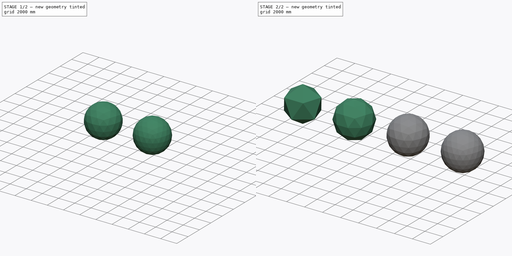
[diagram: build sequence overview — one tinted view per stage of 2, left to right]
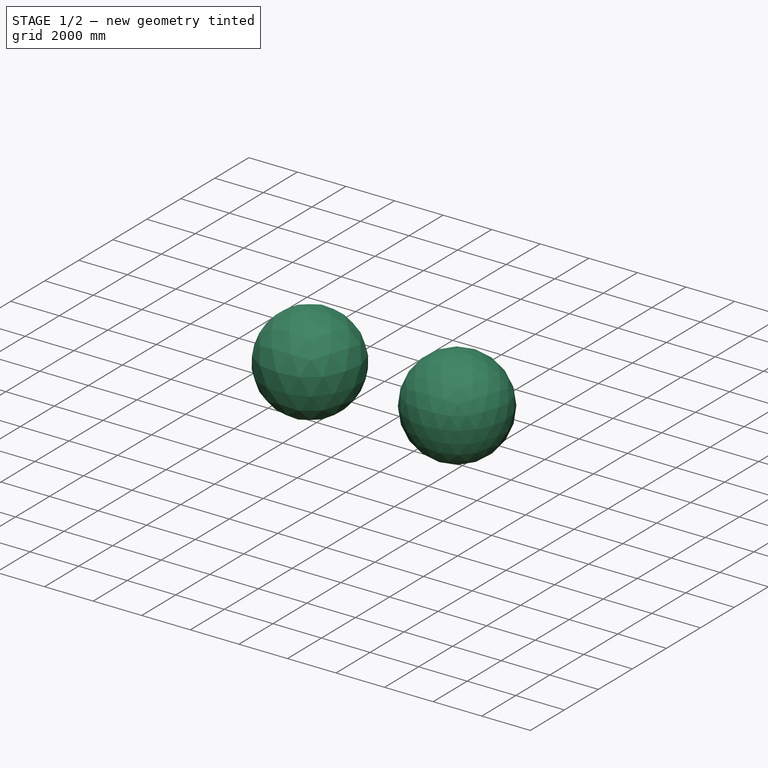
[diagram: stage 1 of 2 — iso view after this stage's code; geometry added in this stage tinted green]
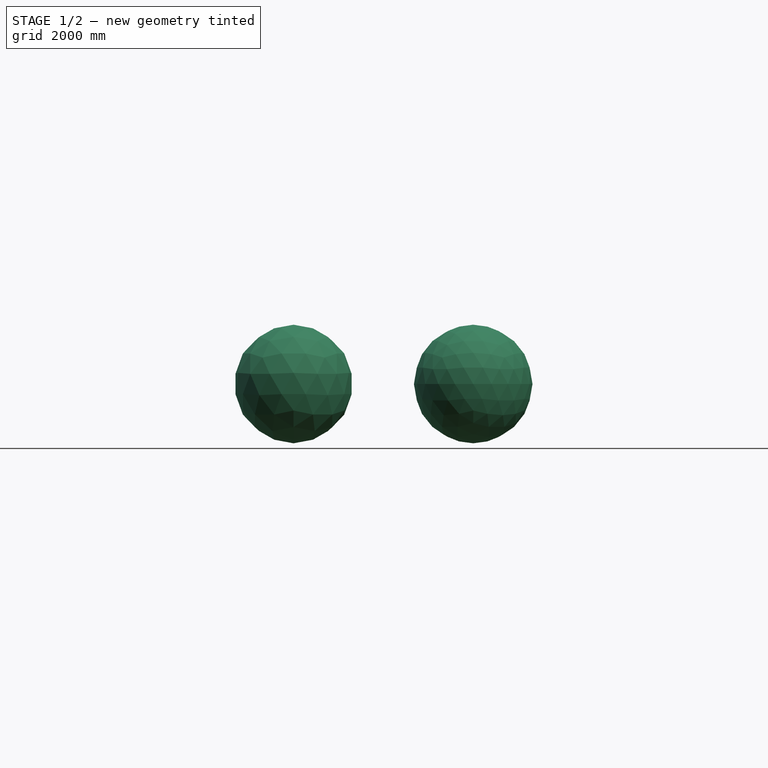
[diagram: stage 1 of 2 — front view after this stage's code; geometry added in this stage tinted green]
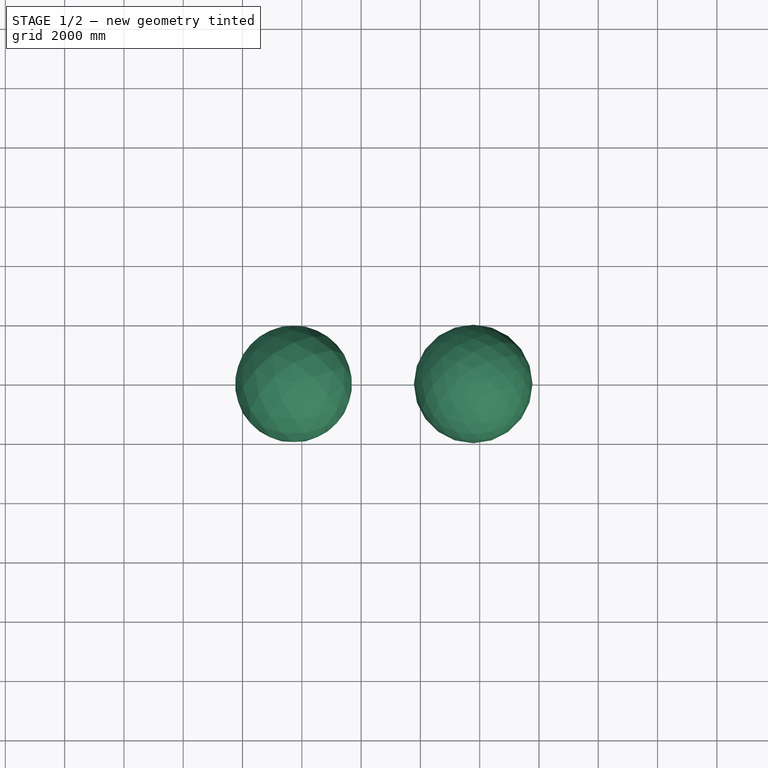
[diagram: stage 1 of 2 — top view after this stage's code; geometry added in this stage tinted green]
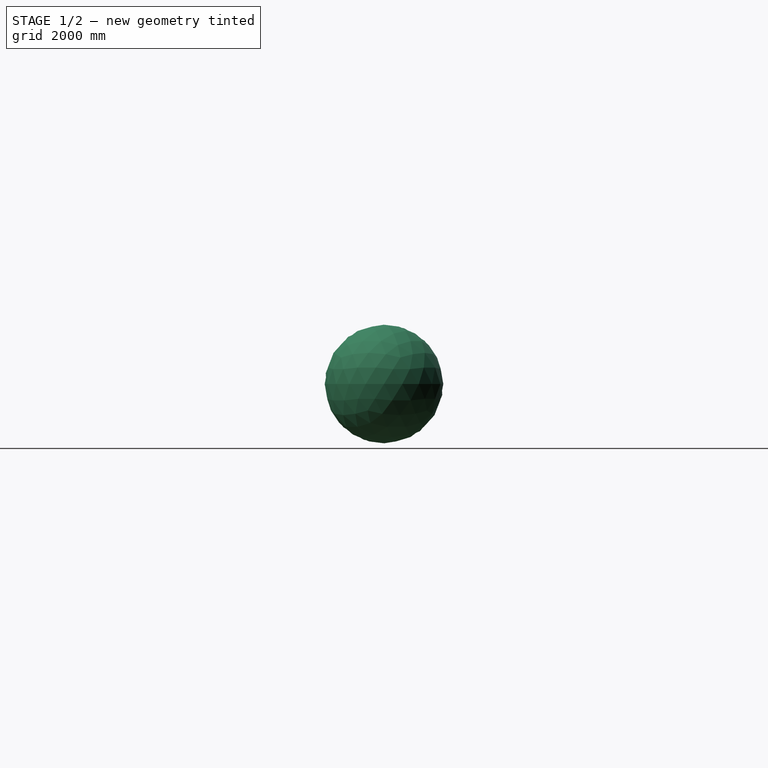
[diagram: stage 1 of 2 — right view after this stage's code; geometry added in this stage tinted green]
FCSTD DOCUMENT  (FreeCAD 0.19R24267 +99 (Git))
Label: isocahedron
License: All rights reserved
LicenseURL: http://en.wikipedia.org/wiki/All_rights_reserved
objects: Part::FeaturePython×4, PartDesign::ShapeBinder×1, Sketcher::SketchObject×1, PartDesign::CoordinateSystem×1, PartDesign::Body×1
note: 8 computed .brp shape members not serialized (recipe doc carries the construction recipe); baked Part::Feature solids carry a one-line shape summary decoded from their .brp

FEATURE [Part::FeaturePython] GeoDome002  label="GeoDome_180"  # WARN: FeaturePython — macro-defined, semantics opaque (R4)
  FrequencyParameter = 3
  Placement = pos=(11722,0,0) rot=(0,0,1;0rad)
  Radius = 2000
  ShapeType = 0
FEATURE [Part::FeaturePython] GeoDome003  label="GeoDome_320"  # WARN: FeaturePython — macro-defined, semantics opaque (R4)
  FrequencyParameter = 4
  Placement = pos=(17782,0,0) rot=(0,0,1;0rad)
  Radius = 2000
  ShapeType = 0
FEATURE [PartDesign::ShapeBinder] CopyGeoDome
  Placement = pos=(5737,0,0) rot=(0,0,1;0rad)
  TraceSupport = false
FEATURE [Sketcher::SketchObject] Sketch
  FullyConstrained = true
  MapMode = 5
  Placement = pos=(5737,-625.195,1780.47) rot=(1,0,0;0.337691rad)
  Support = -> [CopyGeoDome]
  sketch-geometry (27):
    g0: GeomPoint X=-411.745 Y=60.5871 Z=0
    g1: GeomPoint X=-208.366 Y=360.302 Z=0
    g2: LineSegment StartX=-208.366 StartY=360.302 StartZ=0 EndX=202.659 EndY=360.302 EndZ=0
    g3: LineSegment StartX=-411.745 StartY=60.5871 StartZ=0 EndX=410.305 EndY=60.5871 EndZ=0
    g4: GeomPoint X=-204.099 Y=-239.128 Z=0
    g5: GeomPoint X=206.926 Y=-239.128 Z=0
    g6: LineSegment StartX=-204.099 StartY=-239.128 StartZ=0 EndX=-411.745 EndY=60.5871 EndZ=0
    g7: LineSegment StartX=-208.366 StartY=360.302 StartZ=0 EndX=206.926 EndY=-239.128 EndZ=0
    g8: LineSegment StartX=206.926 StartY=-239.128 StartZ=0 EndX=410.305 EndY=60.5871 EndZ=0
    g9: LineSegment StartX=202.659 StartY=360.302 StartZ=0 EndX=-204.099 EndY=-239.128 EndZ=0
    g10: LineSegment StartX=-615.124 StartY=-239.128 StartZ=0 EndX=-513.434 EndY=-89.2702 EndZ=0
    g11: LineSegment StartX=-411.745 StartY=60.5871 StartZ=0 EndX=-310.055 EndY=210.445 EndZ=0
    g12: LineSegment StartX=-208.366 StartY=360.302 StartZ=0 EndX=-106.676 EndY=510.159 EndZ=0
    g13: LineSegment StartX=-4.98674 StartY=660.017 StartZ=0 EndX=-106.676 EndY=510.159 EndZ=0
    g14: LineSegment StartX=-513.434 StartY=-89.2702 StartZ=0 EndX=-411.745 EndY=60.5871 EndZ=0
    g15: LineSegment StartX=-310.055 StartY=210.445 StartZ=0 EndX=-208.366 EndY=360.302 EndZ=0
    g16: LineSegment StartX=-4.98674 StartY=660.017 StartZ=0 EndX=202.659 EndY=360.302 EndZ=0
    g17: LineSegment StartX=202.659 StartY=360.302 StartZ=0 EndX=410.305 EndY=60.5871 EndZ=0
    g18: LineSegment StartX=410.305 StartY=60.5871 StartZ=0 EndX=617.951 EndY=-239.128 EndZ=0
    g19: LineSegment StartX=-615.124 StartY=-239.128 StartZ=0 EndX=-204.099 EndY=-239.128 EndZ=0
    g20: LineSegment StartX=-204.099 StartY=-239.128 StartZ=0 EndX=206.926 EndY=-239.128 EndZ=0
    g21: LineSegment StartX=206.926 StartY=-239.128 StartZ=0 EndX=617.951 EndY=-239.128 EndZ=0
    g22: LineSegment StartX=-106.676 StartY=510.159 StartZ=0 EndX=98.8362 EndY=510.159 EndZ=0
    g23: LineSegment StartX=-310.055 StartY=210.445 StartZ=0 EndX=306.482 EndY=210.445 EndZ=0
    g24: LineSegment StartX=-106.676 StartY=510.159 StartZ=0 EndX=202.659 EndY=360.302 EndZ=0
    g25: LineSegment StartX=-208.366 StartY=360.302 StartZ=0 EndX=98.8362 EndY=510.159 EndZ=0
    g26: GeomPoint X=-3.5644 Y=460.207 Z=0
  constraints (64):
    c: DistanceX(g10) = -615.124
    c: DistanceY(g10) = -239.128
    c: DistanceX(g13) = -4.98674
    c: DistanceY(g13) = 660.017
    c: DistanceX(g18) = 617.951
    c: Coincident(g2,g1)
    c: Horizontal(g2)
    c: Coincident(g3,g0)
    c: Horizontal(g3)
    c: Coincident(g6,g4)
    c: Coincident(g6,g0)
    c: Coincident(g7,g1)
    c: Coincident(g7,g5)
    c: Parallel(g6,g7)
    c: Coincident(g8,g5)
    c: Coincident(g8,g3)
    c: Coincident(g9,g2)
    c: Coincident(g9,g4)
    c: Coincident(g11,g0)
    c: Coincident(g12,g1)
    c: Coincident(g13,g12)
    c: Coincident(g14,g10)
    c: Coincident(g14,g0)
    c: Coincident(g15,g11)
    c: Coincident(g15,g1)
    c: Parallel(g10,g14)
    c: Parallel(g14,g11)
    c: Parallel(g11,g15)
    c: Parallel(g15,g12)
    c: Parallel(g12,g13)
    c: Equal(g10,g14)
    c: Equal(g14,g11)
    c: Equal(g11,g15)
    c: Equal(g15,g12)
    c: Equal(g12,g13)
    c: Coincident(g16,g13)
    c: Coincident(g16,g2)
    c: Coincident(g17,g2)
    c: Coincident(g17,g3)
    c: Coincident(g18,g3)
    c: Equal(g16,g17)
    c: Equal(g17,g18)
    c: Coincident(g19,g10)
    c: Coincident(g19,g4)
    c: Horizontal(g19)
    c: Coincident(g20,g4)
    c: Coincident(g20,g5)
    c: Coincident(g21,g5)
    c: Coincident(g21,g18)
    c: Horizontal(g21)
    c: Parallel(g19,g20)
    c: Equal(g20,g21)
    c: Coincident(g22,g12)
    c: PointOnObject(g22,g16)
    c: Horizontal(g22)
    c: Coincident(g23,g11)
    c: PointOnObject(g23,g17)
    c: Horizontal(g23)
    c: Coincident(g24,g12)
    c: Coincident(g24,g2)
    c: Coincident(g25,g1)
    c: Coincident(g25,g22)
    c: PointOnObject(g26,g24)
    c: PointOnObject(g26,g25)
FEATURE [PartDesign::CoordinateSystem] Local_CS
  AttacherType = Attacher::AttachEngine3D
FEATURE [PartDesign::Body] Body
  Group = -> [CopyGeoDome,Sketch,Local_CS]
  Origin = -> Origin
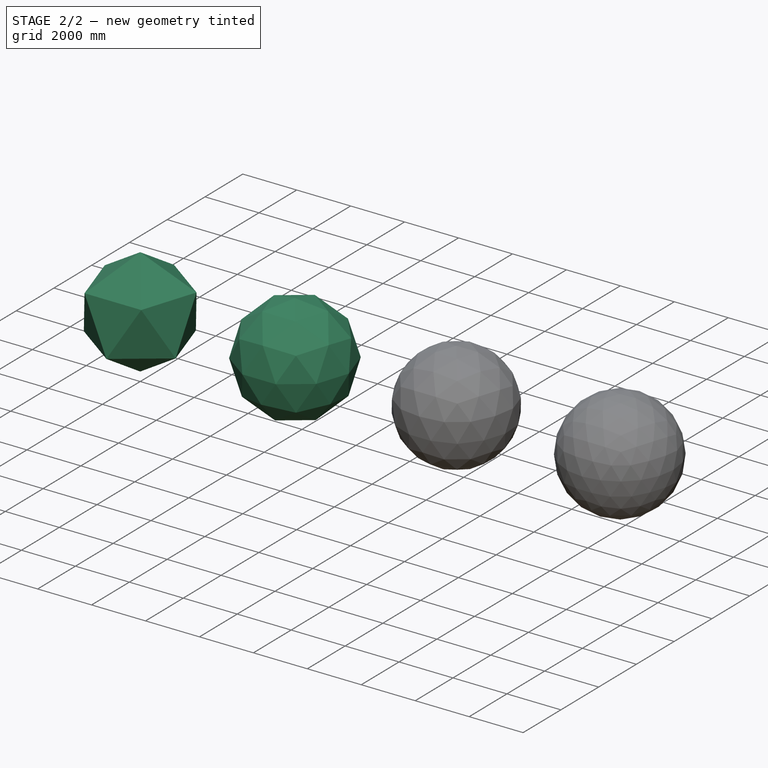
[diagram: stage 2 of 2 — iso view after this stage's code; geometry added in this stage tinted green]
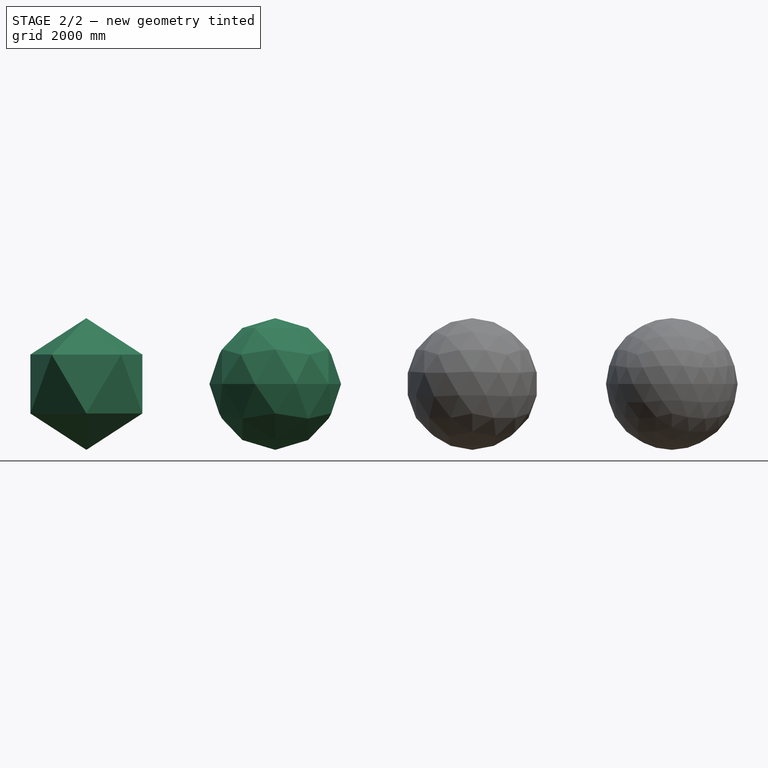
[diagram: stage 2 of 2 — front view after this stage's code; geometry added in this stage tinted green]
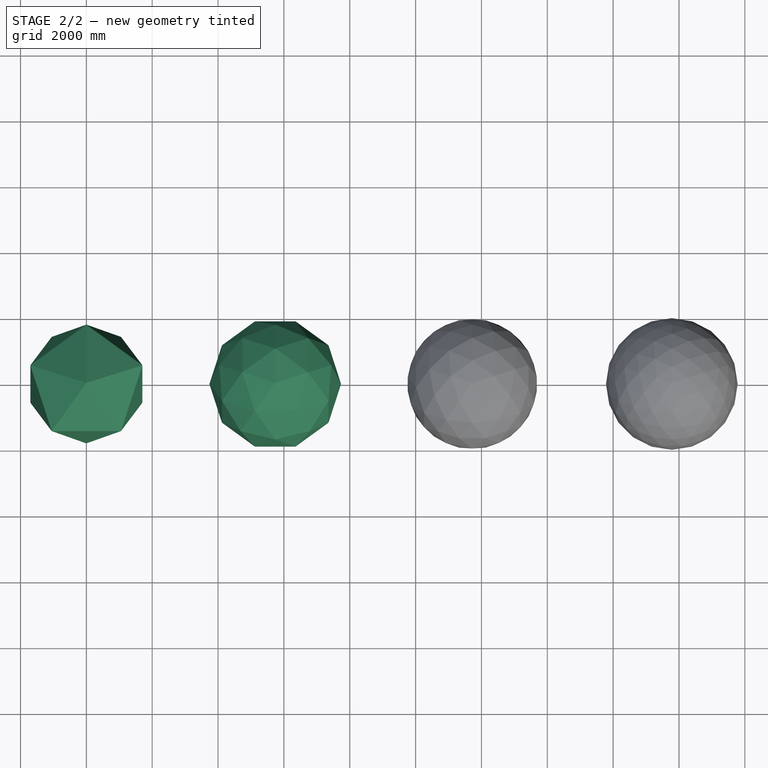
[diagram: stage 2 of 2 — top view after this stage's code; geometry added in this stage tinted green]
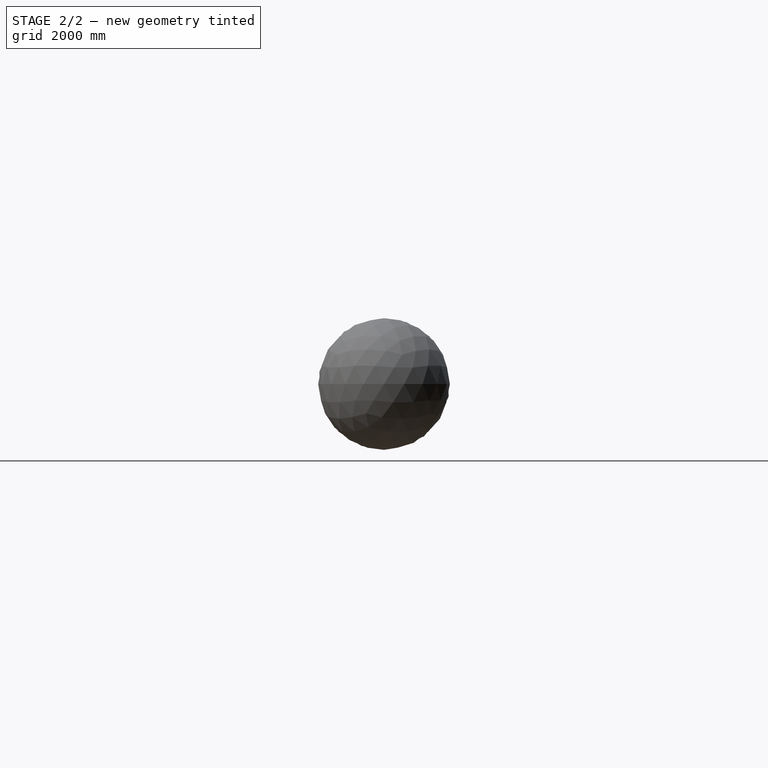
[diagram: stage 2 of 2 — right view after this stage's code; geometry added in this stage tinted green]
FEATURE [Part::FeaturePython] GeoDome  label="GeoDome_80"  # WARN: FeaturePython — macro-defined, semantics opaque (R4)
  FrequencyParameter = 2
  Placement = pos=(5737,0,0) rot=(0,0,1;0rad)
  Radius = 2000
  ShapeType = 0
FEATURE [Part::FeaturePython] GeoDome001  label="GeoDome_20"  # WARN: FeaturePython — macro-defined, semantics opaque (R4)
  FrequencyParameter = 1
  Radius = 2000
  ShapeType = 0
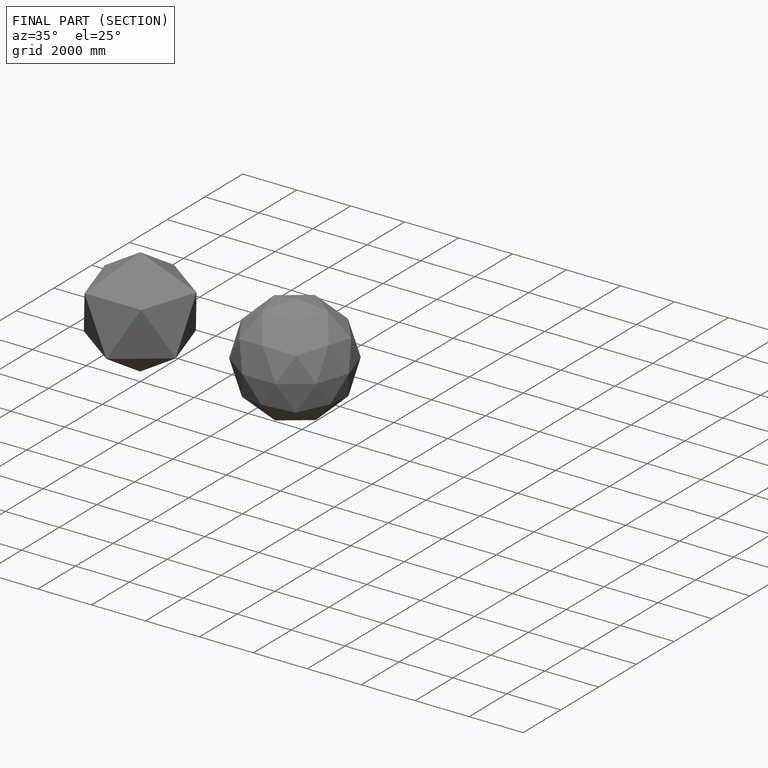
[diagram: finished part — half-section view (interior)]
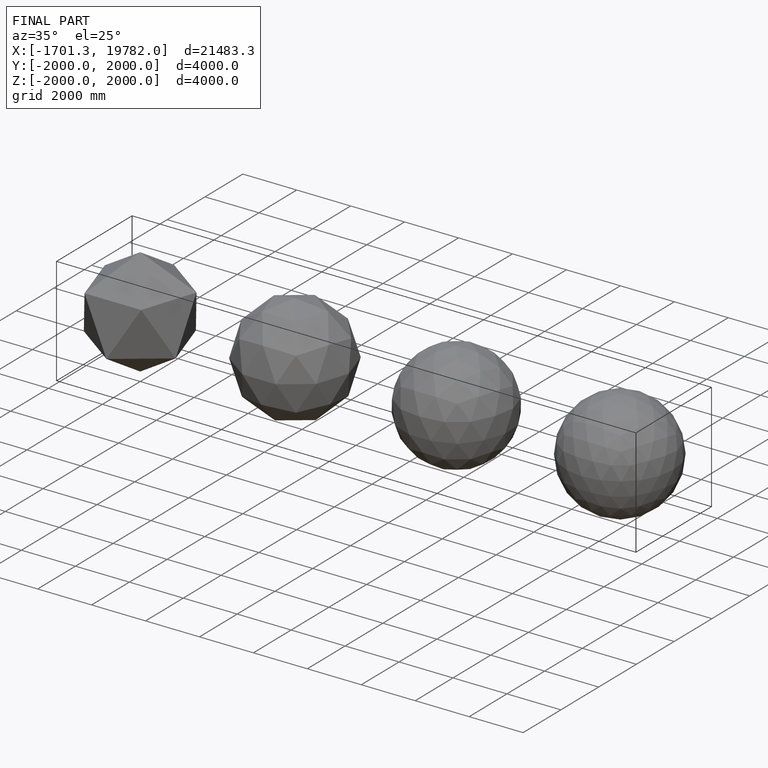
[diagram: finished part — iso view with bounding-box wireframe]
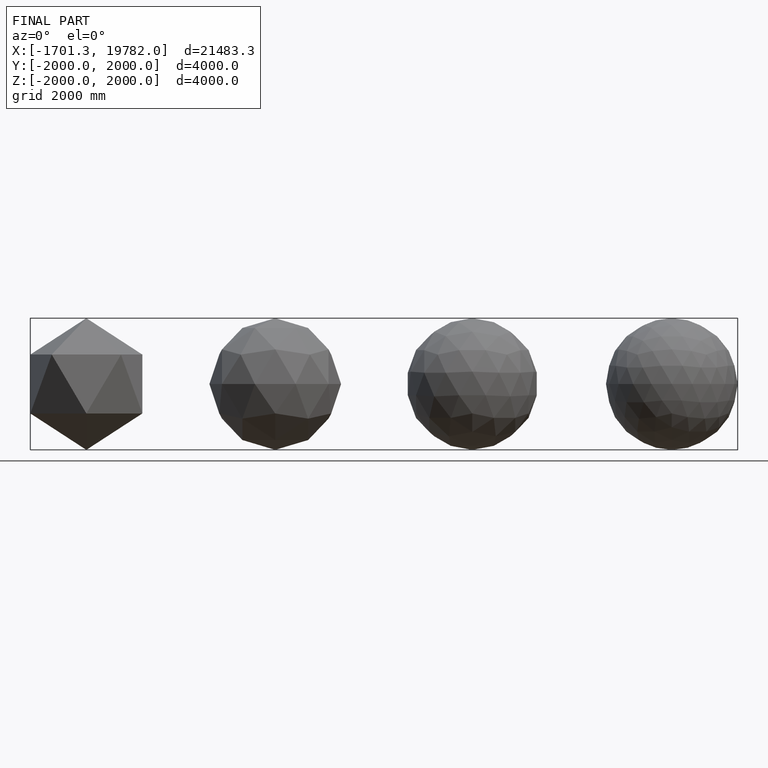
[diagram: finished part — front view with bounding-box wireframe]
